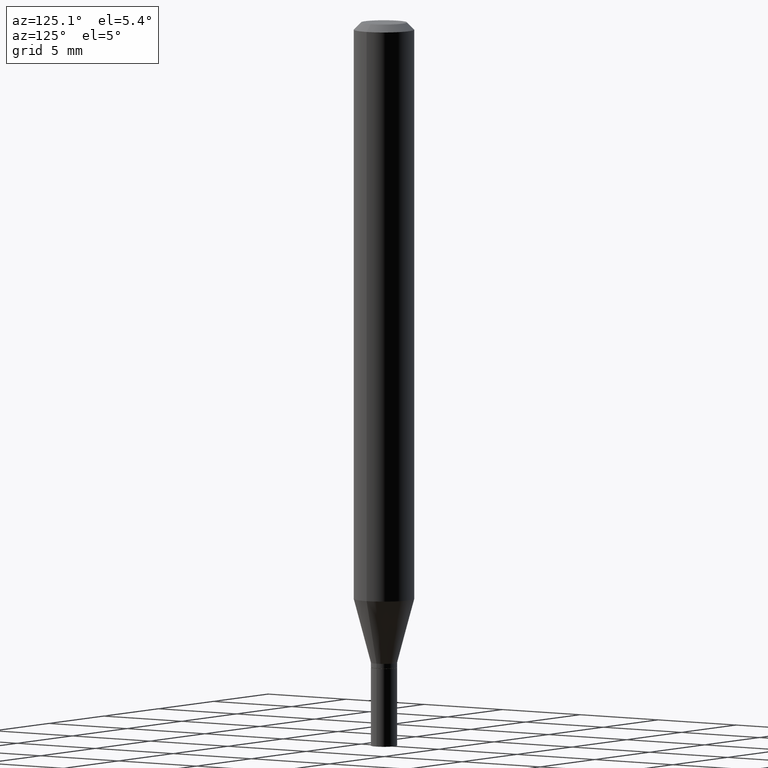
[diagram: clean part render]
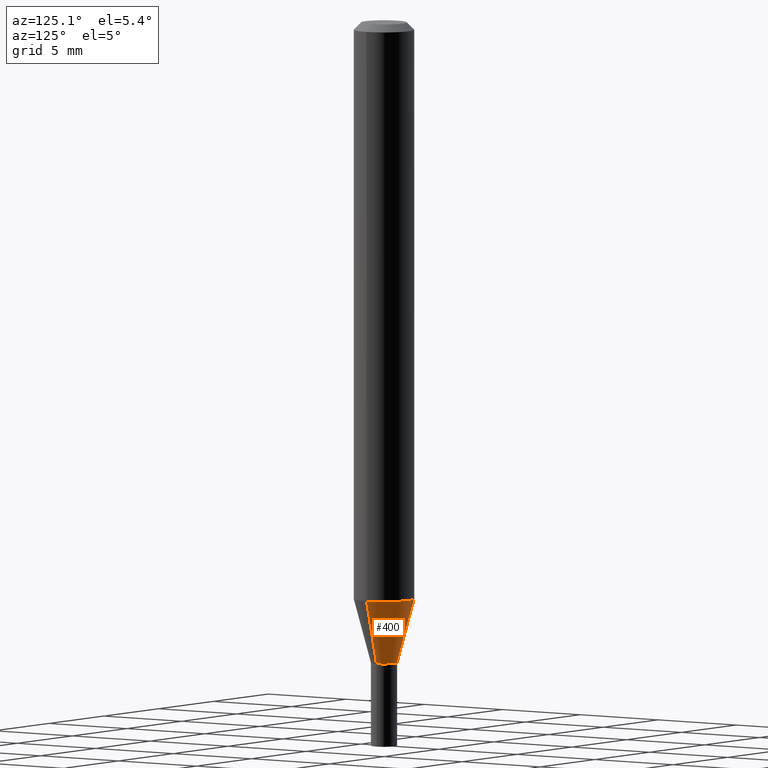
[diagram: same view with one face highlighted and labeled with its STEP entity id]
A machine part, auxiliary view. The second image highlights one B-rep face of the part: STEP entity #400.
In plain terms, the highlighted conical surface has half-angle 15 deg.
Its self-contained STEP definition (entity closure, byte-faithful):
#19 = EDGE_CURVE ( 'NONE', #237, #92, #354, .T. ) ;
#22 = CARTESIAN_POINT ( 'NONE',  ( 0.02699999999999992684, -4.825227210281226768E-15, -1.328000000000000069 ) ) ;
#29 = ORIENTED_EDGE ( 'NONE', *, *, #347, .F. ) ;
#30 = VERTEX_POINT ( 'NONE', #22 ) ;
#31 = FACE_OUTER_BOUND ( 'NONE', #464, .T. ) ;
#62 = CONICAL_SURFACE ( 'NONE', #246, 0.02699999999999992684, 0.2617993877991494633 ) ;
#64 = DIRECTION ( 'NONE',  ( -2.445468806185136597E-29, 3.491481338843145583E-15, 1.000000000000000000 ) ) ;
#92 = VERTEX_POINT ( 'NONE', #163 ) ;
#102 = DIRECTION ( 'NONE',  ( -2.445468806185136597E-29, 3.491481338843145583E-15, 1.000000000000000000 ) ) ;
#105 = DIRECTION ( 'NONE',  ( 1.000000000000000000, -6.982962677686262766E-15, 0.000000000000000000 ) ) ;
#119 = CIRCLE ( 'NONE', #434, 0.02699999999999992684 ) ;
#123 = VECTOR ( 'NONE', #445, 39.37007874015748854 ) ;
#124 = AXIS2_PLACEMENT_3D ( 'NONE', #248, #64, #105 ) ;
#135 = VERTEX_POINT ( 'NONE', #137 ) ;
#137 = CARTESIAN_POINT ( 'NONE',  ( 0.06250000000000000000, -4.610543691205524908E-15, -1.195512196331304677 ) ) ;
#149 = VECTOR ( 'NONE', #302, 39.37007874015748854 ) ;
#163 = CARTESIAN_POINT ( 'NONE',  ( -0.06250000000000000000, -3.730019314000071411E-15, -1.195512196331304677 ) ) ;
#168 = CARTESIAN_POINT ( 'NONE',  ( 3.247582574613861342E-29, -4.636687217983698072E-15, -1.328000000000000069 ) ) ;
#180 = CARTESIAN_POINT ( 'NONE',  ( -0.02699999999999992684, -4.087429996664271131E-15, -1.328000000000000069 ) ) ;
#193 = ORIENTED_EDGE ( 'NONE', *, *, #19, .T. ) ;
#235 = CIRCLE ( 'NONE', #124, 0.06250000000000000000 ) ;
#237 = VERTEX_POINT ( 'NONE', #180 ) ;
#239 = ORIENTED_EDGE ( 'NONE', *, *, #419, .F. ) ;
#246 = AXIS2_PLACEMENT_3D ( 'NONE', #168, #424, #309 ) ;
#248 = CARTESIAN_POINT ( 'NONE',  ( 2.923587783542086622E-29, -4.174108523850133238E-15, -1.195512196331304677 ) ) ;
#282 = DIRECTION ( 'NONE',  ( 1.000000000000000000, -6.982962677686279332E-15, 0.000000000000000000 ) ) ;
#296 = CARTESIAN_POINT ( 'NONE',  ( -0.02699999999999992684, -4.444840679328471640E-15, -1.328000000000000069 ) ) ;
#302 = DIRECTION ( 'NONE',  ( 0.2588190451025207395, 1.565188264969626109E-15, 0.9659258262890682012 ) ) ;
#309 = DIRECTION ( 'NONE',  ( 1.000000000000000000, -6.982962677686279332E-15, 0.000000000000000000 ) ) ;
#344 = ORIENTED_EDGE ( 'NONE', *, *, #414, .T. ) ;
#347 = EDGE_CURVE ( 'NONE', #30, #135, #418, .T. ) ;
#354 = LINE ( 'NONE', #296, #123 ) ;
#400 = ADVANCED_FACE ( 'NONE', ( #31 ), #62, .T. ) ;
#414 = EDGE_CURVE ( 'NONE', #30, #237, #119, .T. ) ;
#415 = CARTESIAN_POINT ( 'NONE',  ( 3.247582574613861342E-29, -4.636687217983698072E-15, -1.328000000000000069 ) ) ;
#418 = LINE ( 'NONE', #455, #149 ) ;
#419 = EDGE_CURVE ( 'NONE', #135, #92, #235, .T. ) ;
#424 = DIRECTION ( 'NONE',  ( -2.445468806185136597E-29, 3.491481338843145583E-15, 1.000000000000000000 ) ) ;
#434 = AXIS2_PLACEMENT_3D ( 'NONE', #415, #102, #282 ) ;
#445 = DIRECTION ( 'NONE',  ( -0.2588190451025207395, 5.211531920934546309E-15, 0.9659258262890682012 ) ) ;
#455 = CARTESIAN_POINT ( 'NONE',  ( 0.02699999999999992684, -4.825227210281226768E-15, -1.328000000000000069 ) ) ;
#464 = EDGE_LOOP ( 'NONE', ( #344, #193, #239, #29 ) ) ;